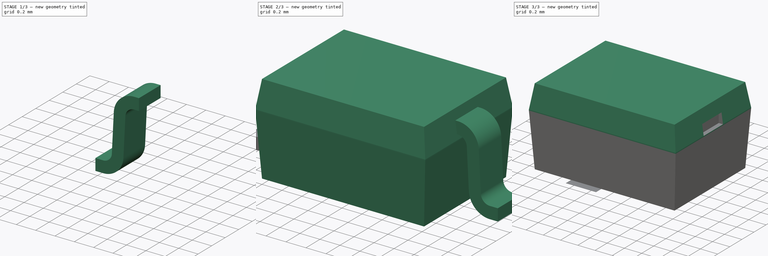
[diagram: build sequence overview — one tinted view per stage of 3, left to right]
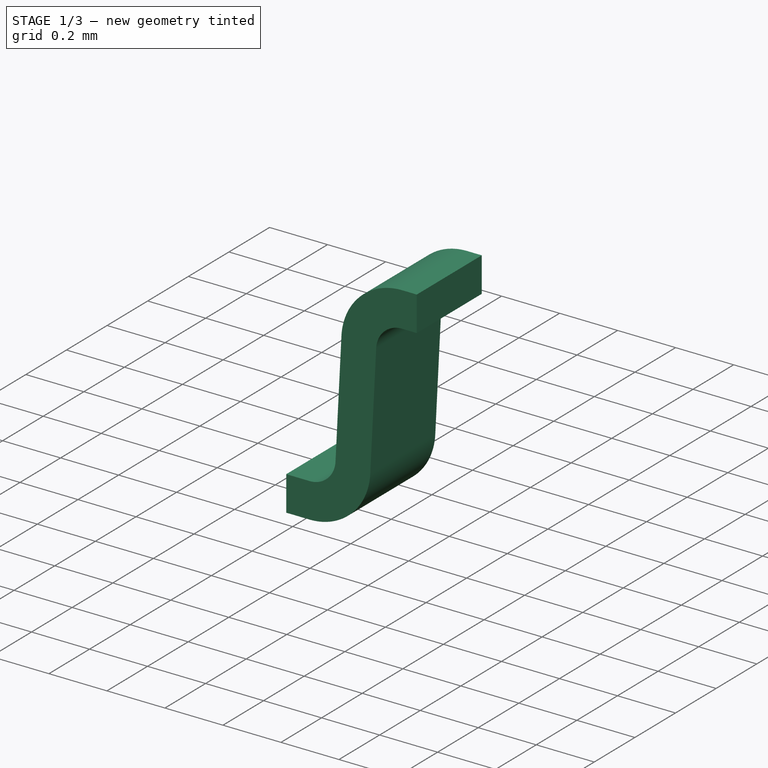
[diagram: stage 1 of 3 — iso view after this stage's code; geometry added in this stage tinted green]
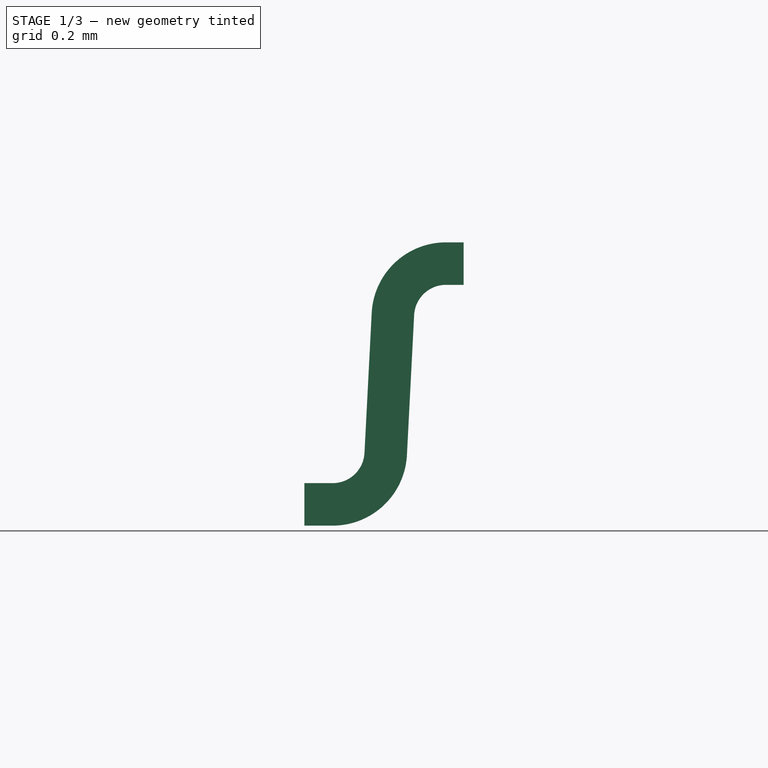
[diagram: stage 1 of 3 — front view after this stage's code; geometry added in this stage tinted green]
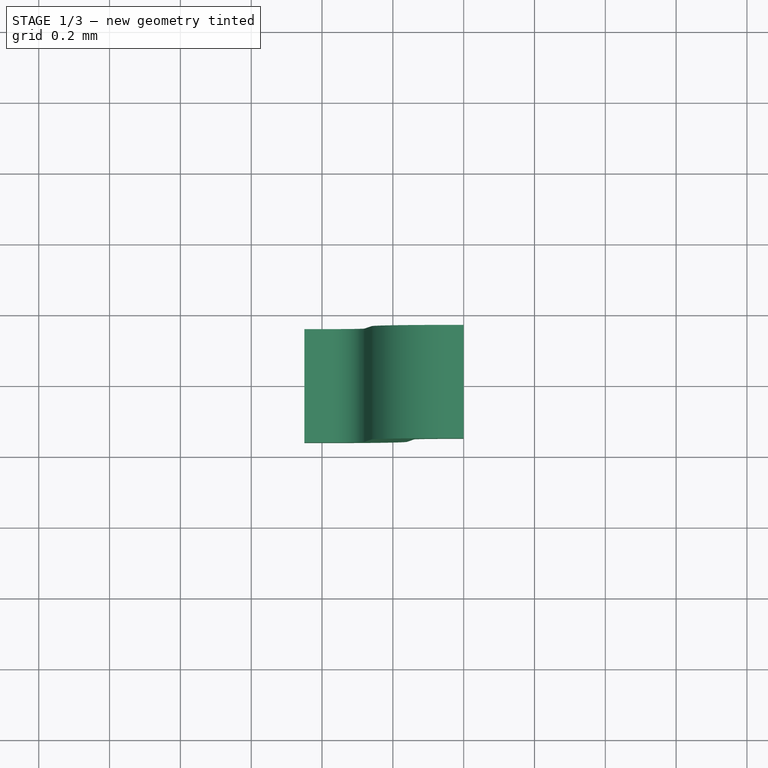
[diagram: stage 1 of 3 — top view after this stage's code; geometry added in this stage tinted green]
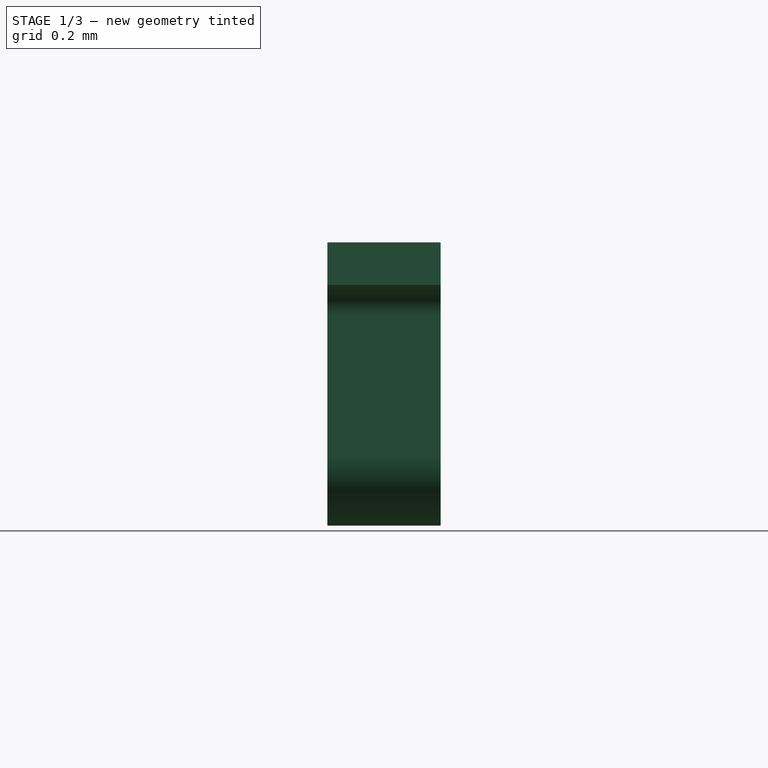
[diagram: stage 1 of 3 — right view after this stage's code; geometry added in this stage tinted green]
FCSTD DOCUMENT  (FreeCAD 1.0R38641 +468 (Git))
Label: MM3ZxxxT1G
License: All rights reserved
objects: Sketcher::SketchObject×6, PartDesign::Body×4, PartDesign::Pad×2, Spreadsheet::Sheet×1, PartDesign::AdditiveLoft×1, Part::Mirroring×1, Part::Compound×1, PartDesign::FeatureBase×1, Part::Cut×1
note: 30 computed .brp shape members not serialized (recipe doc carries the construction recipe); baked Part::Feature solids carry a one-line shape summary decoded from their .brp

FEATURE [PartDesign::Body] Body001  label="Label"
  AllowCompound = false
  Group = -> [Sketch004,Pad]
  Origin = -> Origin001
  Placement = pos=(0,0,0.95) rot=(0,0,1;0rad)
  Tip = -> Pad
  expr: .Placement.Base.z = <<Master>>.height + <<Master>>.body_o
FEATURE [Sketcher::SketchObject] Sketch005
  ArcFitTolerance = 0
  AttachmentSupport = -> [XZ_Plane002]
  FullyConstrained = true
  MakeInternals = false
  MapMode = 5
  Placement = pos=(0,0,0) rot=(1,0,0;1.5708rad)
  sketch-geometry (15):
    g0: LineSegment StartX=0.8 StartY=0.8 StartZ=0 EndX=0.85 EndY=0.8 EndZ=0
    g1: LineSegment StartX=1.05972 StartY=0.600818 StartZ=0 EndX=1.08012 EndY=0.205364 EndZ=0
    g2: LineSegment StartX=1.17 StartY=0.12 StartZ=0 EndX=1.25 EndY=0.12 EndZ=0
    g3: LineSegment StartX=1.25 StartY=0.12 StartZ=0 EndX=1.25 EndY=3.0585e-12 EndZ=0
    g4: LineSegment StartX=1.25 StartY=3.0585e-12 StartZ=0 EndX=1.17 EndY=3.0585e-12 EndZ=0
    g5: LineSegment StartX=0.960279 StartY=0.199182 StartZ=0 EndX=0.939881 EndY=0.594636 EndZ=0
    g6: LineSegment StartX=0.85 StartY=0.68 StartZ=0 EndX=0.8 EndY=0.68 EndZ=0
    g7: LineSegment StartX=0.8 StartY=0.68 StartZ=0 EndX=0.8 EndY=0.8 EndZ=0
    g8: ArcOfCircle CenterX=0.85 CenterY=0.59 CenterZ=0 NormalX=0 NormalY=0 NormalZ=1 AngleXU=0 Radius=0.21 StartAngle=0.051537 EndAngle=1.5708
    g9: ArcOfCircle CenterX=0.85 CenterY=0.59 CenterZ=0 NormalX=0 NormalY=0 NormalZ=1 AngleXU=0 Radius=0.09 StartAngle=0.0515392 EndAngle=1.5708
    g10: ArcOfCircle CenterX=1.17 CenterY=0.21 CenterZ=0 NormalX=0 NormalY=0 NormalZ=1 AngleXU=0 Radius=0.09 StartAngle=3.19313 EndAngle=4.71239
    g11: ArcOfCircle CenterX=1.17 CenterY=0.21 CenterZ=0 NormalX=0 NormalY=0 NormalZ=1 AngleXU=0 Radius=0.21 StartAngle=3.19313 EndAngle=4.71239
    g12: LineSegment [constr] StartX=0.85 StartY=0.8 StartZ=0 EndX=0.85 EndY=0.68 EndZ=0
    g13: LineSegment [constr] StartX=0.939881 StartY=0.594636 StartZ=0 EndX=1.05972 EndY=0.600818 EndZ=0
    g14: LineSegment [constr] StartX=1.17 StartY=0.12 StartZ=0 EndX=1.17 EndY=3.0585e-12 EndZ=0
  constraints (44):
    c: Horizontal(g0)
    c: Horizontal(g2)
    c: Coincident(g2,g3)
    c: Vertical(g3)
    c: Coincident(g3,g4)
    c: Horizontal(g4)
    c: Horizontal(g6)
    c: Coincident(g6,g7)
    c: Vertical(g7)
    c: Coincident(g7,g0)
    c: Equal(g3,g7)
    c: Parallel(g5,g1)
    c: Coincident(g1,g8)
    c: Coincident(g5,g9)
    c: Coincident(g1,g10)
    c: Coincident(g5,g11)
    c: Coincident(g4,g11)
    c: Coincident(g2,g10)
    c: Coincident(g6,g9)
    c: Coincident(g0,g8)
    c: Coincident(g9,g8)
    c: Coincident(g12,g0)
    c: Coincident(g12,g6)
    c: Vertical(g12)
    c: Coincident(g13,g5)
    c: Coincident(g13,g1)
    c: Equal(g13,g7)
    c: Coincident(g11,g10)
    c: Coincident(g14,g2)
    c: Coincident(g14,g4)
    c: Vertical(g14)
    c: Perpendicular(g13,g5)
    c: PointOnObject(g3,g-1)
    c: Equal(g9,g10)
    c: Tangent(g11,g5)
    c: Tangent(g9,g5)
    c: Radius(g9) = 0.09
    c: Tangent(g10,g1)
    c: DistanceX(g-1,g3) = 1.25
    c: Distance(g3,g3) = 0.12
    c: Distance(g4,g4) = 0.08
    c: DistanceY(g-1,g0) = 0.8
    c: Distance(g0,g0) = 0.05
    c: DistanceX(g0,g2) = 0.4
FEATURE [PartDesign::Pad] Pad001
  Direction = (0,-1,2e-16)
  Length = 0.16
  Length2 = 0.16
  Placement = pos=(0,0,0) rot=(1,0,0;1.5708rad)
  Profile = -> Sketch005
  ReferenceAxis = -> Sketch005 [N_Axis]
  Suppressed = false
  Type = 4
FEATURE [PartDesign::Body] Body002
  AllowCompound = false
  Group = -> [Sketch005,Pad001]
  Origin = -> Origin002
  Tip = -> Pad001
FEATURE [Part::Mirroring] Part__Mirroring  label="Body002 (Mirror #1)"
  Base = (0,0,0)
  Normal = (1,0,0)
  Source = -> Body002
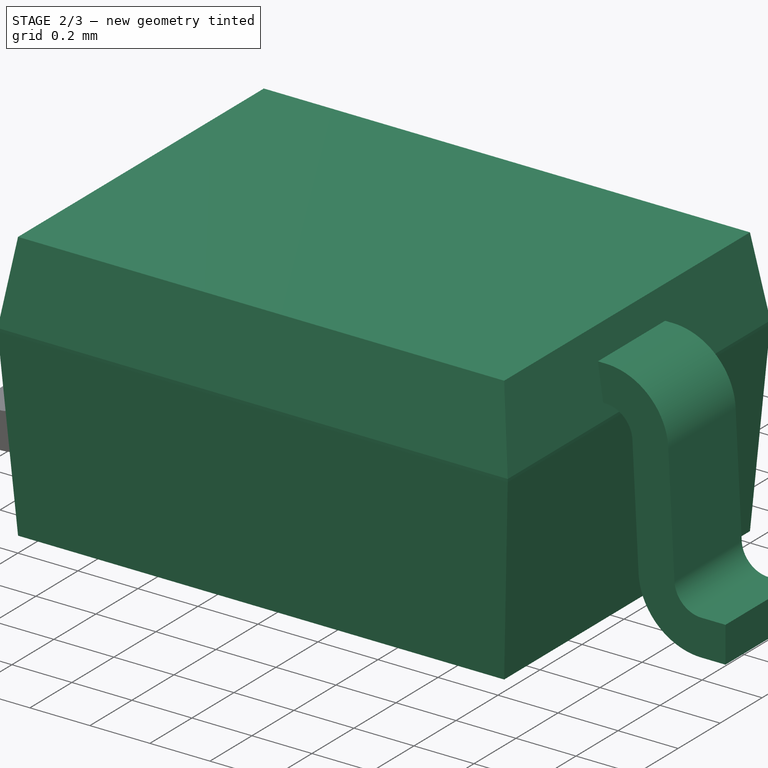
[diagram: stage 2 of 3 — iso view after this stage's code; geometry added in this stage tinted green]
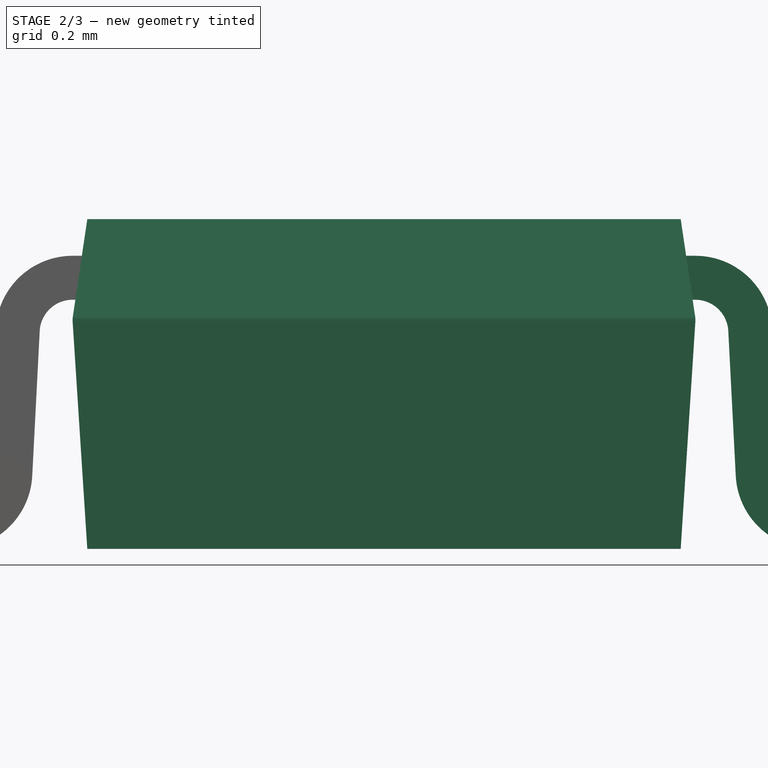
[diagram: stage 2 of 3 — front view after this stage's code; geometry added in this stage tinted green]
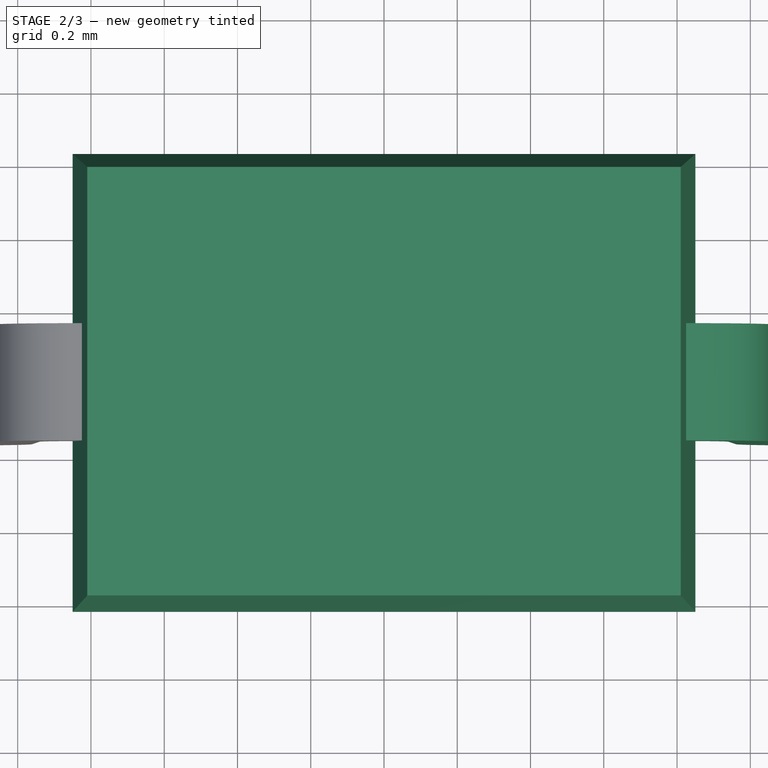
[diagram: stage 2 of 3 — top view after this stage's code; geometry added in this stage tinted green]
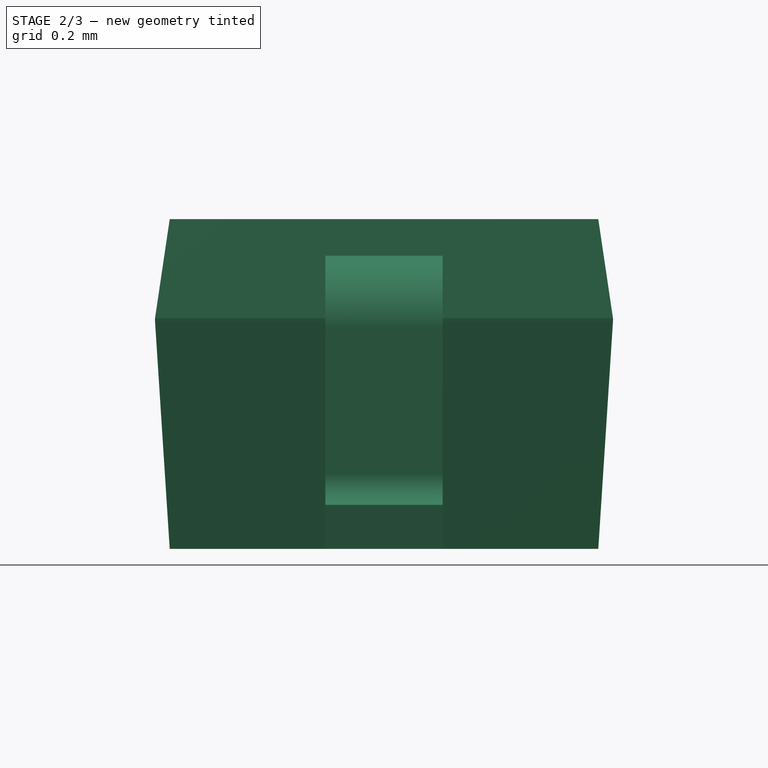
[diagram: stage 2 of 3 — right view after this stage's code; geometry added in this stage tinted green]
FEATURE [Spreadsheet::Sheet] Spreadsheet  label="Master"
  cells = A1='Constants; A2='length; B2(length)==1.7 mm; C2='Body length; A3='width; B3(width)==1.25 mm; C3='Body width; A4='height; B4(height)==0.9 mm; C4='Body height; A5='taper; B5(taper)==40 um; C5='Body taper; A6='body offset; B6(body_o)==50 um; C6='Body offset from PCB; A7='bot height; B7(bot_h)==0.62 mm; C7='Body bottom section height; A8='mid height; B8(mid_h)==10 um; C8='Body middle section height; A9='top height; B9(top_h)==0.27 mm; C9='Body top section height; A11='Calculated; A12='taper length; B12(taper_l)==length - 2 * taper; C12='Body taper offset length; A13='taper width; B13(taper_w)==width - 2 * taper; C13='Body taper offset width; A14='mid height top; B14(mid_top)==bot_h + mid_h; C14='Body top of middle section; A15='top height top; B15==bot_h + mid_h + top_h
FEATURE [Sketcher::SketchObject] Sketch
  ArcFitTolerance = 1e-06
  AttachmentSupport = -> [XY_Plane]
  FullyConstrained = true
  MakeInternals = false
  MapMode = 5
  expr: Constraints[10] = <<Master>>.taper_w
  expr: Constraints[9] = <<Master>>.taper_l
  sketch-geometry (4):
    g0: LineSegment StartX=-0.81 StartY=0.585 StartZ=0 EndX=-0.81 EndY=-0.585 EndZ=0
    g1: LineSegment StartX=-0.81 StartY=-0.585 StartZ=0 EndX=0.81 EndY=-0.585 EndZ=0
    g2: LineSegment StartX=0.81 StartY=-0.585 StartZ=0 EndX=0.81 EndY=0.585 EndZ=0
    g3: LineSegment StartX=0.81 StartY=0.585 StartZ=0 EndX=-0.81 EndY=0.585 EndZ=0
  constraints (11):
    c: Coincident(g0,g1)
    c: Coincident(g1,g2)
    c: Coincident(g2,g3)
    c: Coincident(g3,g0)
    c: Vertical(g0)
    c: Vertical(g2)
    c: Horizontal(g1)
    c: Horizontal(g3)
    c: Symmetric(g0,g2,g-1)
    c: DistanceX(g3,g3) = 1.62
    c: DistanceY(g2,g2) = 1.17
FEATURE [Sketcher::SketchObject] Sketch001
  ArcFitTolerance = 1e-06
  AttachmentOffset = pos=(0,0,0.62) rot=(0,0,1;0rad)
  AttachmentSupport = -> [XY_Plane]
  FullyConstrained = true
  MakeInternals = false
  MapMode = 5
  Placement = pos=(0,0,0.62) rot=(0,0,1;0rad)
  expr: .AttachmentOffset.Base.z = <<Master>>.bot_h
  expr: Constraints[10] = <<Master>>.width
  expr: Constraints[9] = <<Master>>.length
  sketch-geometry (4):
    g0: LineSegment StartX=-0.85 StartY=0.625 StartZ=0 EndX=-0.85 EndY=-0.625 EndZ=0
    g1: LineSegment StartX=-0.85 StartY=-0.625 StartZ=0 EndX=0.85 EndY=-0.625 EndZ=0
    g2: LineSegment StartX=0.85 StartY=-0.625 StartZ=0 EndX=0.85 EndY=0.625 EndZ=0
    g3: LineSegment StartX=0.85 StartY=0.625 StartZ=0 EndX=-0.85 EndY=0.625 EndZ=0
  constraints (11):
    c: Coincident(g0,g1)
    c: Coincident(g1,g2)
    c: Coincident(g2,g3)
    c: Coincident(g3,g0)
    c: Vertical(g0)
    c: Vertical(g2)
    c: Horizontal(g1)
    c: Horizontal(g3)
    c: Symmetric(g2,g0,g-1)
    c: DistanceX(g3,g3) = 1.7
    c: DistanceY(g2,g2) = 1.25
FEATURE [Sketcher::SketchObject] Sketch002
  ArcFitTolerance = 1e-06
  AttachmentOffset = pos=(0,0,0.63) rot=(0,0,1;0rad)
  AttachmentSupport = -> [XY_Plane]
  FullyConstrained = true
  MakeInternals = false
  MapMode = 5
  Placement = pos=(0,0,0.63) rot=(0,0,1;0rad)
  expr: .AttachmentOffset.Base.z = <<Master>>.mid_top
  expr: Constraints[10] = <<Master>>.width
  expr: Constraints[9] = <<Master>>.length
  sketch-geometry (4):
    g0: LineSegment StartX=-0.85 StartY=0.625 StartZ=0 EndX=-0.85 EndY=-0.625 EndZ=0
    g1: LineSegment StartX=-0.85 StartY=-0.625 StartZ=0 EndX=0.85 EndY=-0.625 EndZ=0
    g2: LineSegment StartX=0.85 StartY=-0.625 StartZ=0 EndX=0.85 EndY=0.625 EndZ=0
    g3: LineSegment StartX=0.85 StartY=0.625 StartZ=0 EndX=-0.85 EndY=0.625 EndZ=0
  constraints (11):
    c: Coincident(g0,g1)
    c: Coincident(g1,g2)
    c: Coincident(g2,g3)
    c: Coincident(g3,g0)
    c: Vertical(g0)
    c: Vertical(g2)
    c: Horizontal(g1)
    c: Horizontal(g3)
    c: Symmetric(g2,g0,g-1)
    c: DistanceX(g3,g3) = 1.7
    c: DistanceY(g2,g2) = 1.25
FEATURE [Sketcher::SketchObject] Sketch003
  ArcFitTolerance = 1e-06
  AttachmentOffset = pos=(0,0,0.9) rot=(0,0,1;0rad)
  AttachmentSupport = -> [XY_Plane]
  FullyConstrained = true
  MakeInternals = false
  MapMode = 5
  Placement = pos=(0,0,0.9) rot=(0,0,1;0rad)
  expr: .AttachmentOffset.Base.z = <<Master>>.height
  expr: Constraints[10] = <<Master>>.taper_w
  expr: Constraints[9] = <<Master>>.taper_l
  sketch-geometry (4):
    g0: LineSegment StartX=-0.81 StartY=0.585 StartZ=0 EndX=-0.81 EndY=-0.585 EndZ=0
    g1: LineSegment StartX=-0.81 StartY=-0.585 StartZ=0 EndX=0.81 EndY=-0.585 EndZ=0
    g2: LineSegment StartX=0.81 StartY=-0.585 StartZ=0 EndX=0.81 EndY=0.585 EndZ=0
    g3: LineSegment StartX=0.81 StartY=0.585 StartZ=0 EndX=-0.81 EndY=0.585 EndZ=0
  constraints (11):
    c: Coincident(g0,g1)
    c: Coincident(g1,g2)
    c: Coincident(g2,g3)
    c: Coincident(g3,g0)
    c: Vertical(g0)
    c: Vertical(g2)
    c: Horizontal(g1)
    c: Horizontal(g3)
    c: Symmetric(g0,g2,g-1)
    c: DistanceX(g3,g3) = 1.62
    c: DistanceY(g2,g2) = 1.17
FEATURE [PartDesign::AdditiveLoft] AdditiveLoft
  Closed = false
  Profile = -> Sketch
  Ruled = true
  Sections = -> [Sketch001,Sketch002,Sketch003]
  Suppressed = false
FEATURE [Part::Compound] Compound  label="Pins"
  Links = -> [Part__Mirroring,Body002]
FEATURE [PartDesign::FeatureBase] Clone
  BaseFeature = -> Compound
  Suppressed = false
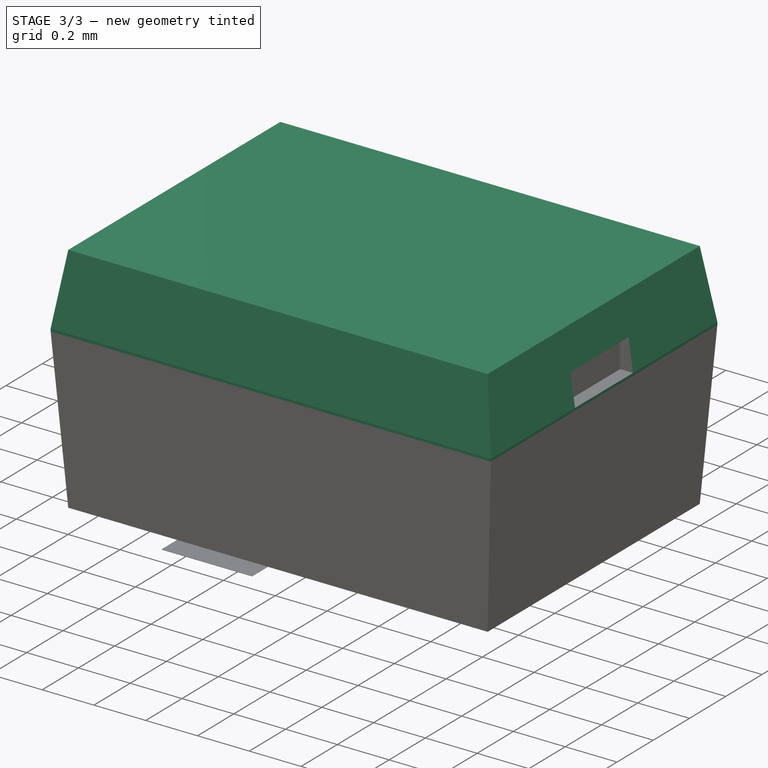
[diagram: stage 3 of 3 — iso view after this stage's code; geometry added in this stage tinted green]
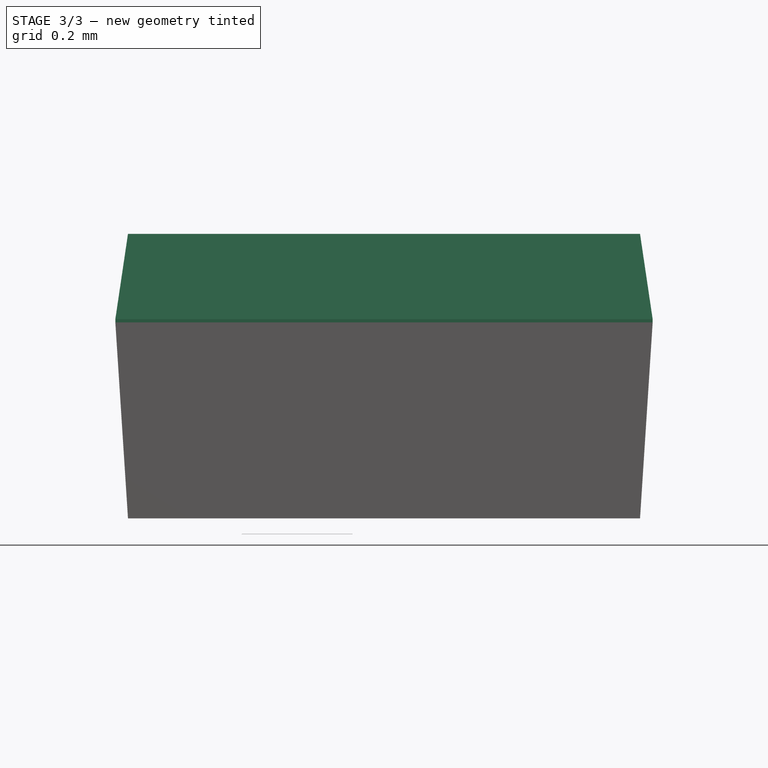
[diagram: stage 3 of 3 — front view after this stage's code; geometry added in this stage tinted green]
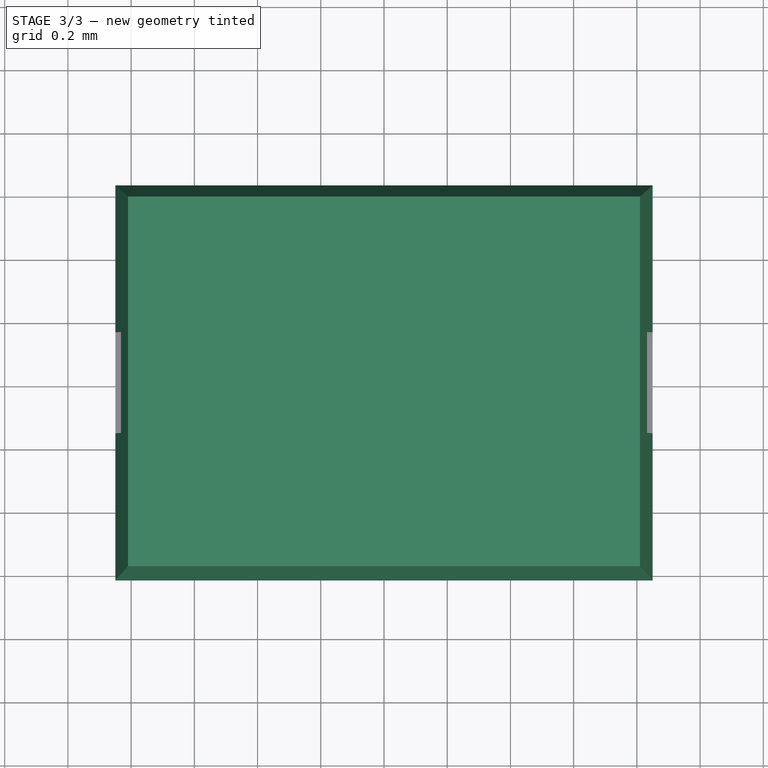
[diagram: stage 3 of 3 — top view after this stage's code; geometry added in this stage tinted green]
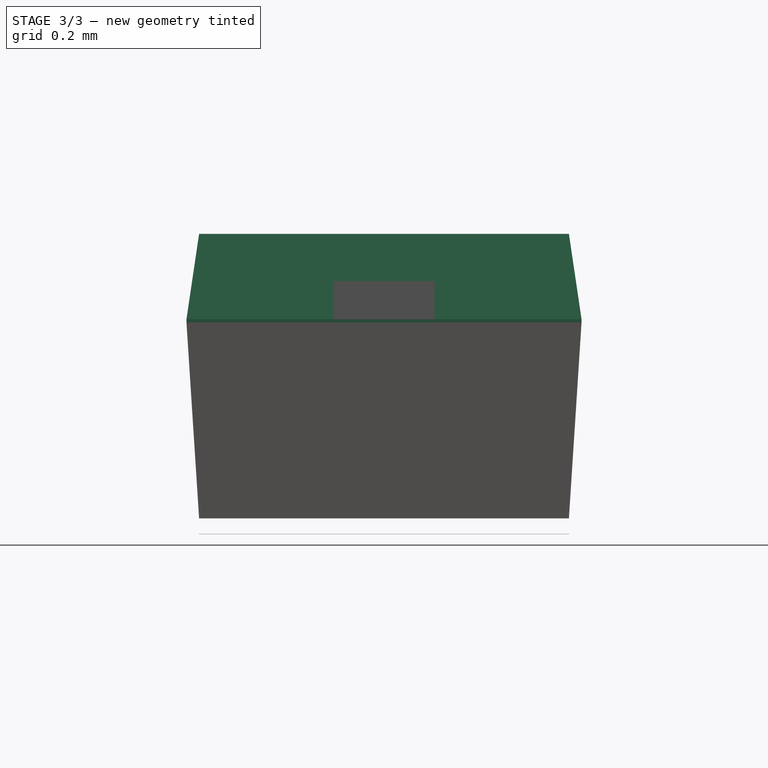
[diagram: stage 3 of 3 — right view after this stage's code; geometry added in this stage tinted green]
FEATURE [PartDesign::Body] Body
  AllowCompound = false
  Group = -> [Sketch,Sketch001,Sketch002,Sketch003,AdditiveLoft]
  Origin = -> Origin
  Placement = pos=(0,0,0.05) rot=(0,0,1;0rad)
  Tip = -> AdditiveLoft
  expr: .Placement.Base.z = <<Master>>.body_o
FEATURE [Sketcher::SketchObject] Sketch004
  ArcFitTolerance = 0
  AttachmentSupport = -> [XY_Plane001]
  FullyConstrained = true
  MakeInternals = false
  MapMode = 5
  expr: Constraints[10] = <<Master>>.taper_w
  sketch-geometry (4):
    g0: LineSegment StartX=-0.45 StartY=0.585 StartZ=0 EndX=-0.1 EndY=0.585 EndZ=0
    g1: LineSegment StartX=-0.1 StartY=0.585 StartZ=0 EndX=-0.1 EndY=-0.585 EndZ=0
    g2: LineSegment StartX=-0.1 StartY=-0.585 StartZ=0 EndX=-0.45 EndY=-0.585 EndZ=0
    g3: LineSegment StartX=-0.45 StartY=-0.585 StartZ=0 EndX=-0.45 EndY=0.585 EndZ=0
  constraints (11):
    c: Coincident(g0,g1)
    c: Coincident(g1,g2)
    c: Coincident(g2,g3)
    c: Coincident(g3,g0)
    c: Horizontal(g0)
    c: Horizontal(g2)
    c: Vertical(g3)
    c: Symmetric(g0,g1,g-1)
    c: DistanceX(g0,g0) = 0.35
    c: DistanceX(g0,g-1) = 0.1
    c: DistanceY(g3,g3) = 1.17
FEATURE [PartDesign::Pad] Pad
  Direction = (0,0,1)
  Length = 0.001
  Length2 = 10
  Profile = -> Sketch004
  ReferenceAxis = -> Sketch004 [N_Axis]
  Suppressed = false
  Type = 0
FEATURE [PartDesign::Body] Body003
  AllowCompound = false
  Group = -> [Clone]
  Origin = -> Origin003
  Tip = -> Clone
FEATURE [Part::Cut] Cut  label="Body004"
  Base = -> Body
  Tool = -> Body003
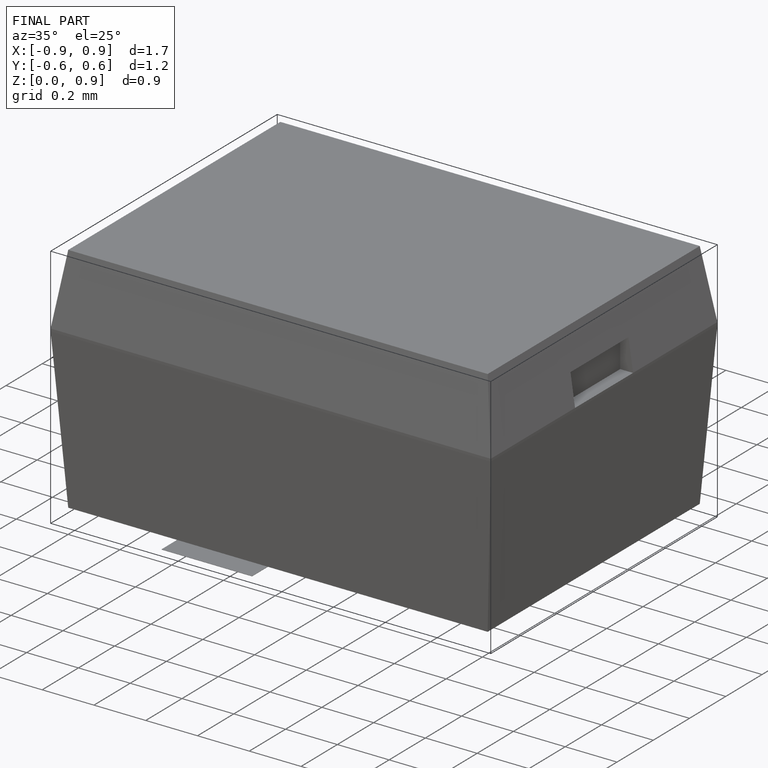
[diagram: finished part — iso view with bounding-box wireframe]
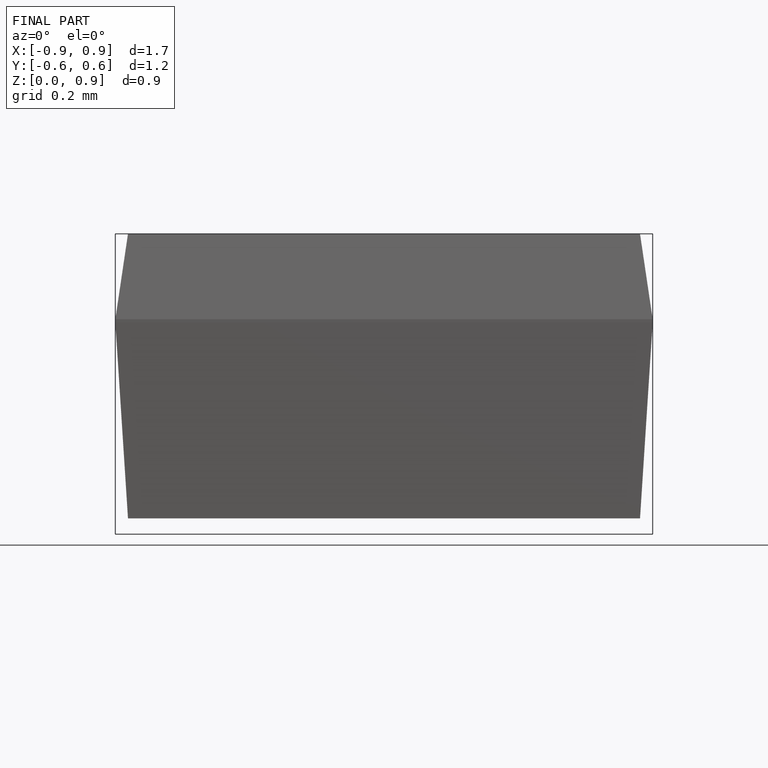
[diagram: finished part — front view with bounding-box wireframe]
